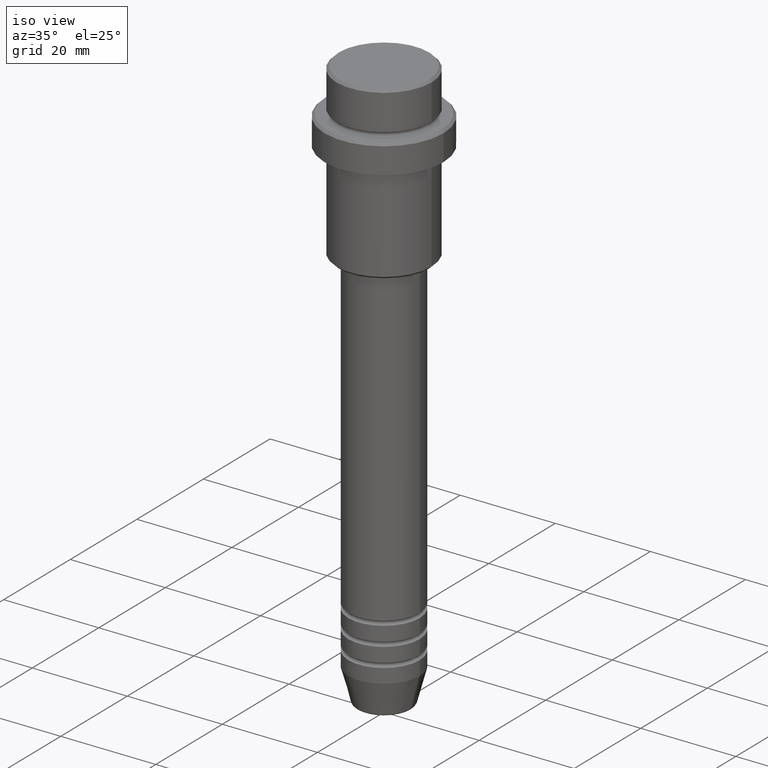
[diagram: clean part render]
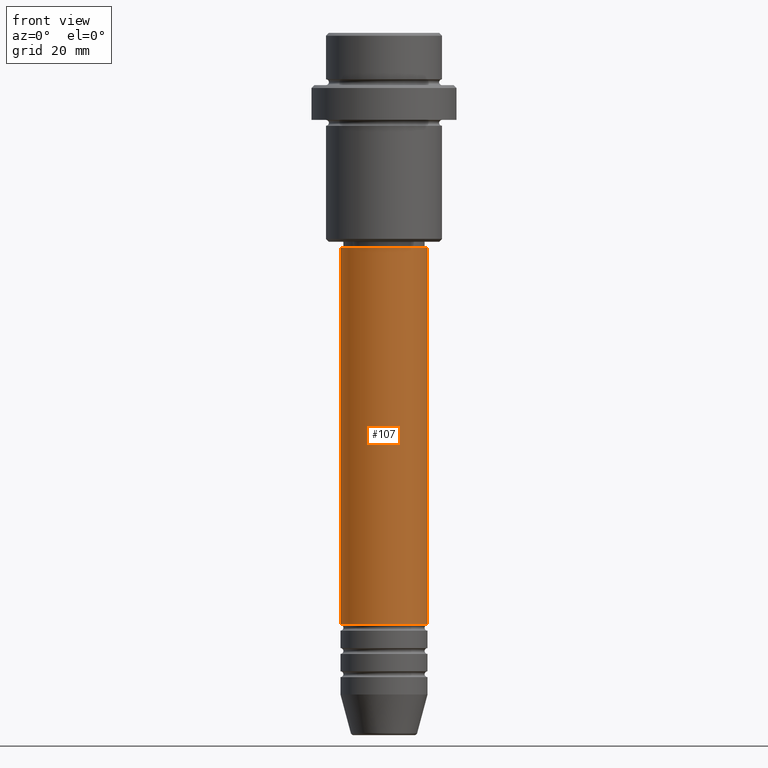
[diagram: tour spotlight — one face highlighted and labeled with its STEP entity id]
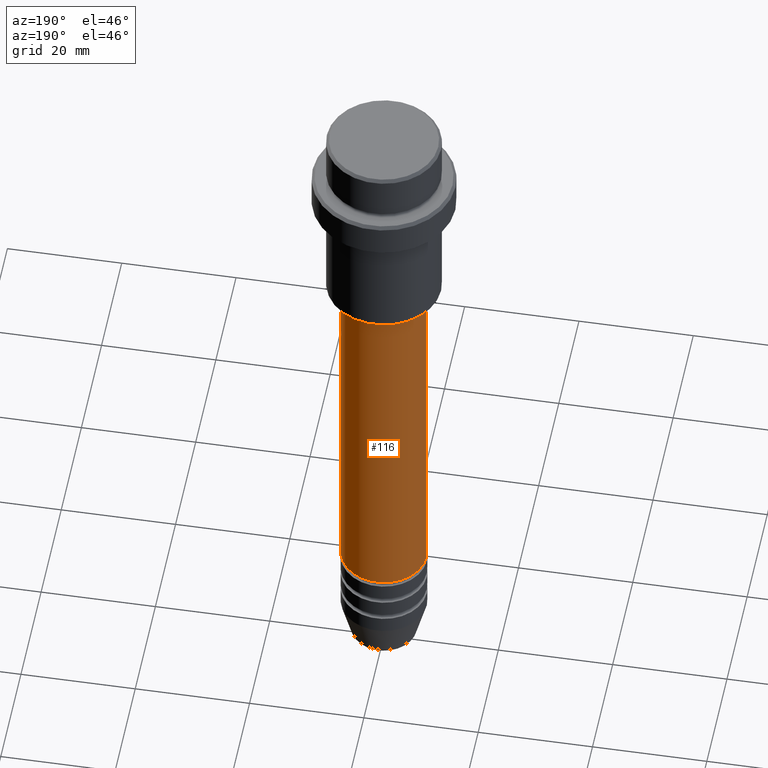
[diagram: tour spotlight — one face highlighted and labeled with its STEP entity id]
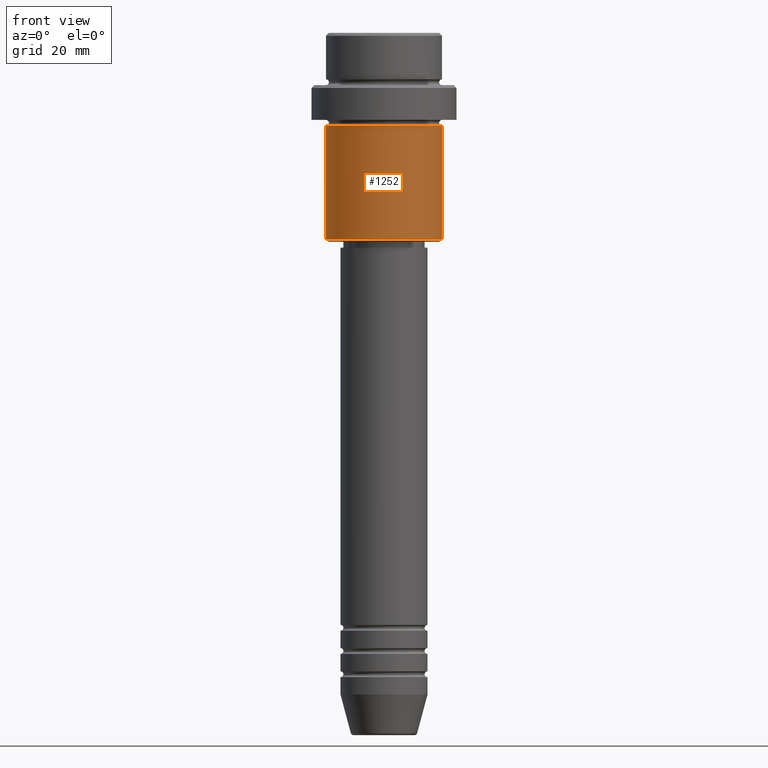
[diagram: tour spotlight — one face highlighted and labeled with its STEP entity id]
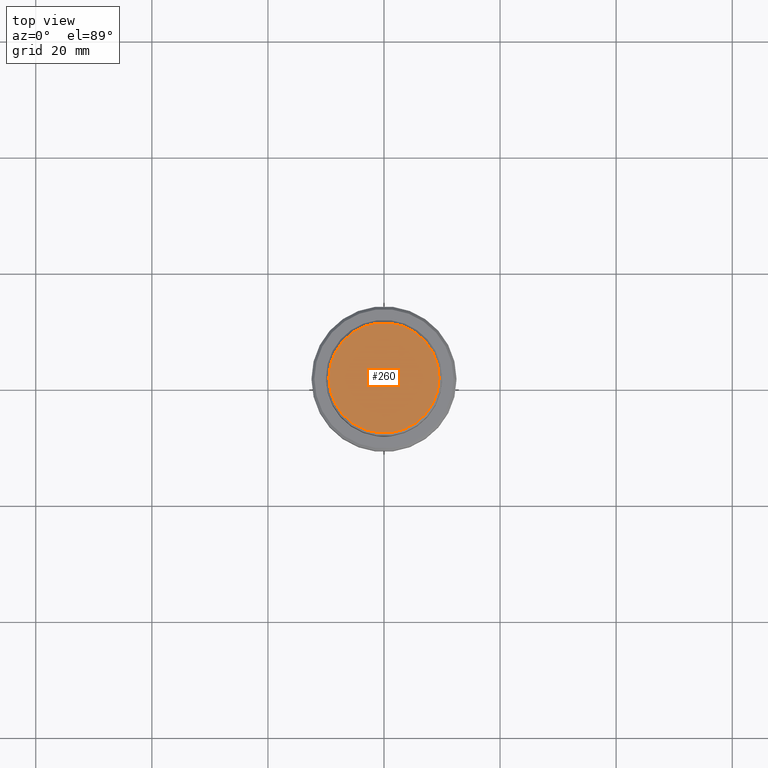
[diagram: tour spotlight — one face highlighted and labeled with its STEP entity id]
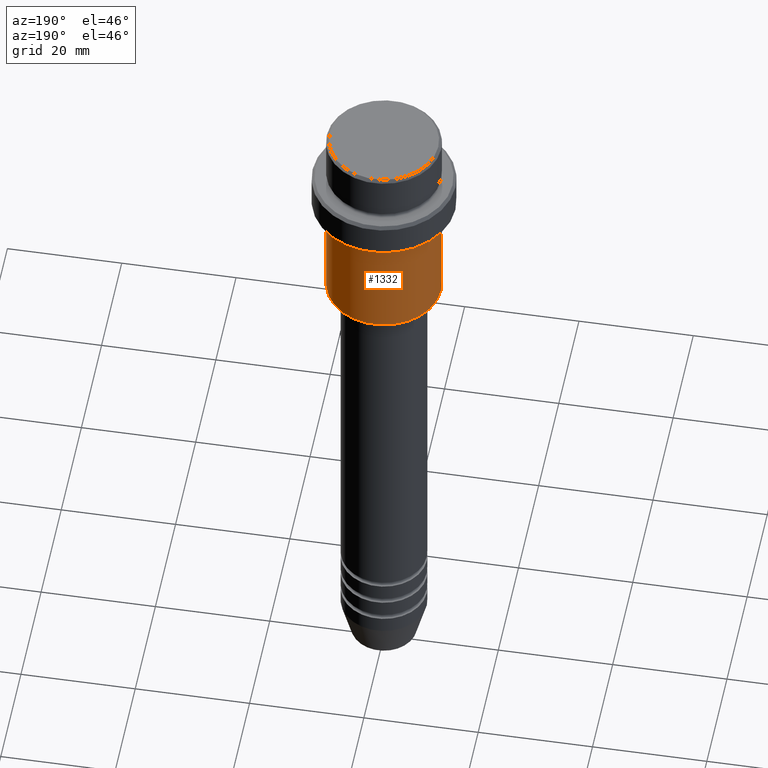
[diagram: tour spotlight — one face highlighted and labeled with its STEP entity id]
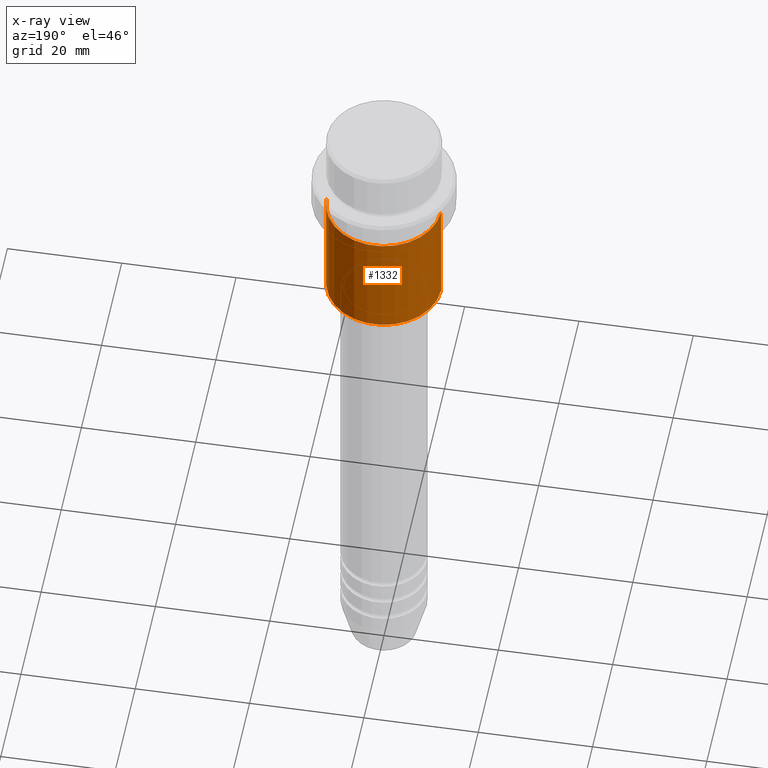
[diagram: x-ray of the same camera — body ghosted, this tour face saturated]
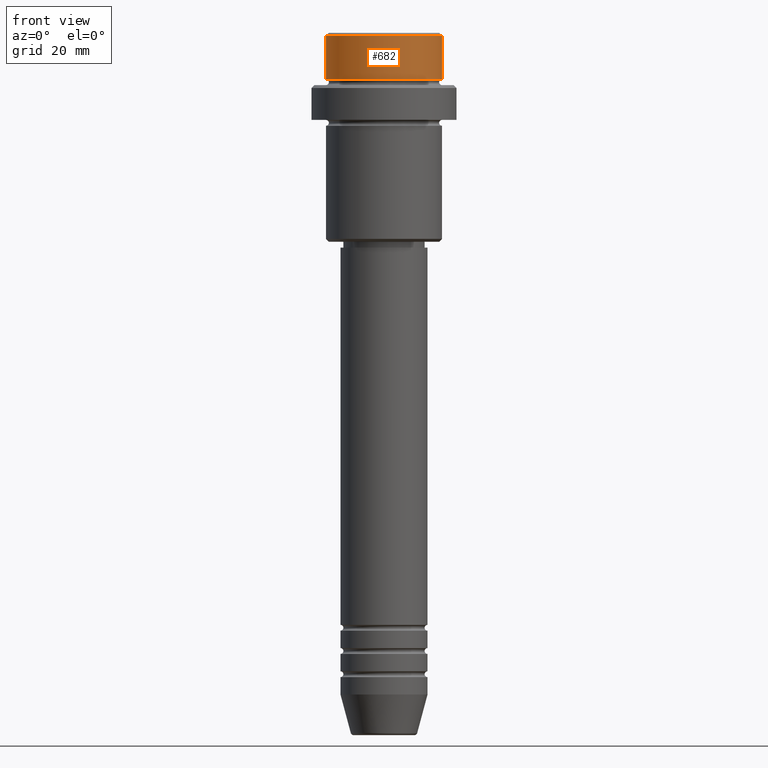
[diagram: tour spotlight — one face highlighted and labeled with its STEP entity id]
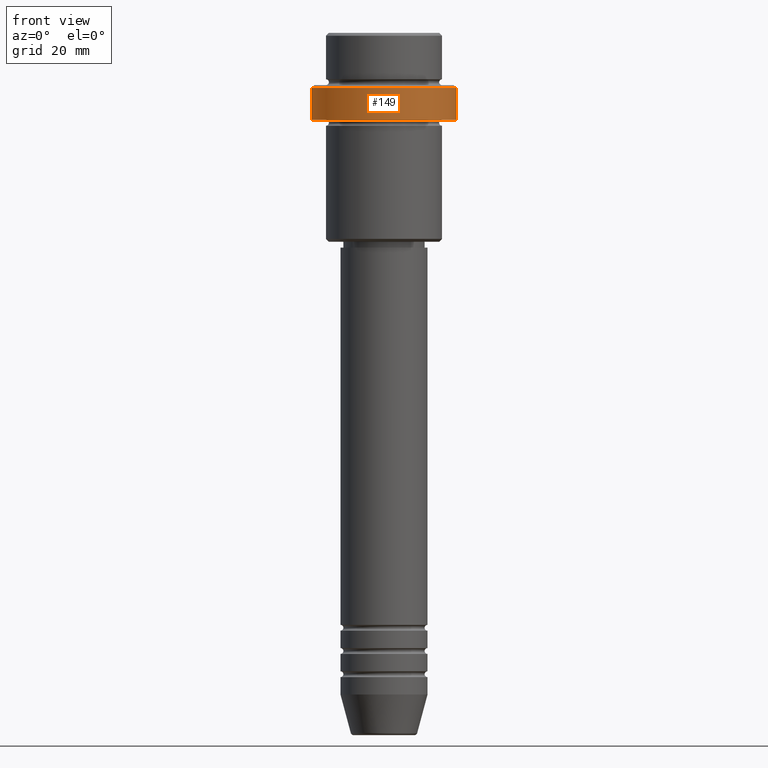
[diagram: tour spotlight — one face highlighted and labeled with its STEP entity id]
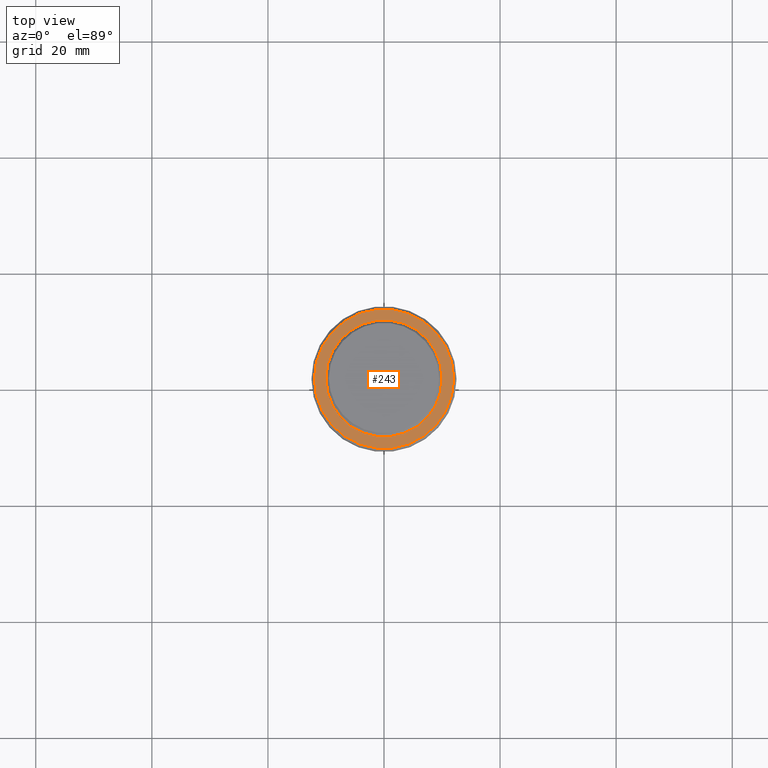
[diagram: tour spotlight — one face highlighted and labeled with its STEP entity id]
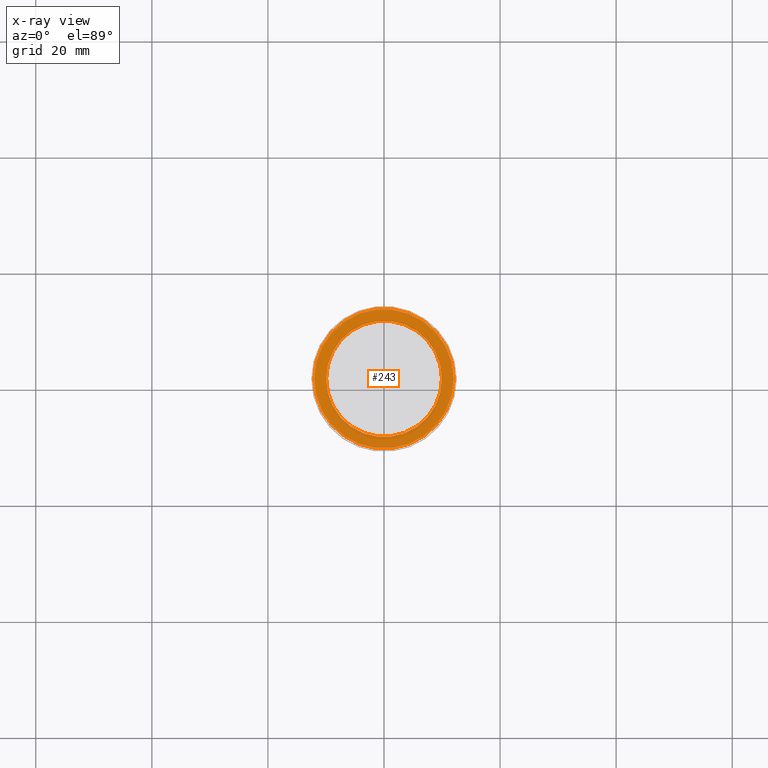
[diagram: x-ray of the same camera — body ghosted, this tour face saturated]
A machine part: a face-by-face anatomy tour. The part has 52 B-rep faces; the first image is the clean iso view, then the 8 largest visible faces are spotlighted one at a time (largest first), each with its STEP entity span.

Face 1 — front view, entity #107. In plain terms, the highlighted cylindrical surface (partial cylindrical patch) has radius 7.5 mm, axis along (-0, -0, 1).
Definition (entity closure, byte-faithful):
#22 = ORIENTED_EDGE ( 'NONE', *, *, #1031, .F. ) ;
#46 = VECTOR ( 'NONE', #1155, 1000.000000000000000 ) ;
#69 = CIRCLE ( 'NONE', #1401, 7.500000000000000000 ) ;
#78 = CARTESIAN_POINT ( 'NONE',  ( -7.500000000000000000, 9.184850993605147944E-16, -37.00000000000002132 ) ) ;
#86 = CARTESIAN_POINT ( 'NONE',  ( 0.000000000000000000, 0.000000000000000000, 0.000000000000000000 ) ) ;
#107 = ADVANCED_FACE ( 'NONE', ( #742 ), #301, .T. ) ;
#132 = CARTESIAN_POINT ( 'NONE',  ( 7.500000000000000000, 0.000000000000000000, 0.000000000000000000 ) ) ;
#142 = CARTESIAN_POINT ( 'NONE',  ( 0.000000000000000000, 0.000000000000000000, -101.9999999999999005 ) ) ;
#264 = ORIENTED_EDGE ( 'NONE', *, *, #306, .T. ) ;
#301 = CYLINDRICAL_SURFACE ( 'NONE', #750, 7.500000000000000000 ) ;
#306 = EDGE_CURVE ( 'NONE', #984, #788, #1029, .T. ) ;
#356 = DIRECTION ( 'NONE',  ( -0.000000000000000000, -0.000000000000000000, 1.000000000000000000 ) ) ;
#380 = CARTESIAN_POINT ( 'NONE',  ( 7.500000000000000000, 0.000000000000000000, -37.00000000000002132 ) ) ;
#418 = DIRECTION ( 'NONE',  ( -0.000000000000000000, -0.000000000000000000, 1.000000000000000000 ) ) ;
#557 = CARTESIAN_POINT ( 'NONE',  ( 7.500000000000000000, 0.000000000000000000, -101.9999999999999005 ) ) ;
#562 = VERTEX_POINT ( 'NONE', #78 ) ;
#592 = VECTOR ( 'NONE', #356, 1000.000000000000000 ) ;
#598 = ORIENTED_EDGE ( 'NONE', *, *, #1184, .T. ) ;
#671 = LINE ( 'NONE', #132, #592 ) ;
#714 = CARTESIAN_POINT ( 'NONE',  ( -7.500000000000000000, 9.184850993605147944E-16, 0.000000000000000000 ) ) ;
#729 = DIRECTION ( 'NONE',  ( -0.000000000000000000, -0.000000000000000000, 1.000000000000000000 ) ) ;
#742 = FACE_OUTER_BOUND ( 'NONE', #834, .T. ) ;
#750 = AXIS2_PLACEMENT_3D ( 'NONE', #86, #418, #856 ) ;
#788 = VERTEX_POINT ( 'NONE', #557 ) ;
#817 = LINE ( 'NONE', #714, #46 ) ;
#834 = EDGE_LOOP ( 'NONE', ( #22, #264, #598, #1146 ) ) ;
#856 = DIRECTION ( 'NONE',  ( 1.000000000000000000, 0.000000000000000000, 0.000000000000000000 ) ) ;
#984 = VERTEX_POINT ( 'NONE', #1044 ) ;
#1014 = VERTEX_POINT ( 'NONE', #380 ) ;
#1029 = CIRCLE ( 'NONE', #1320, 7.500000000000000000 ) ;
#1031 = EDGE_CURVE ( 'NONE', #984, #562, #817, .T. ) ;
#1044 = CARTESIAN_POINT ( 'NONE',  ( -7.500000000000000000, 9.184850993605147944E-16, -101.9999999999999005 ) ) ;
#1137 = DIRECTION ( 'NONE',  ( -0.000000000000000000, -0.000000000000000000, 1.000000000000000000 ) ) ;
#1146 = ORIENTED_EDGE ( 'NONE', *, *, #1263, .F. ) ;
#1155 = DIRECTION ( 'NONE',  ( -0.000000000000000000, -0.000000000000000000, 1.000000000000000000 ) ) ;
#1183 = CARTESIAN_POINT ( 'NONE',  ( 0.000000000000000000, 0.000000000000000000, -37.00000000000002132 ) ) ;
#1184 = EDGE_CURVE ( 'NONE', #788, #1014, #671, .T. ) ;
#1263 = EDGE_CURVE ( 'NONE', #562, #1014, #69, .T. ) ;
#1320 = AXIS2_PLACEMENT_3D ( 'NONE', #142, #1137, #1366 ) ;
#1366 = DIRECTION ( 'NONE',  ( 1.000000000000000000, 0.000000000000000000, 0.000000000000000000 ) ) ;
#1379 = DIRECTION ( 'NONE',  ( 1.000000000000000000, 0.000000000000000000, 0.000000000000000000 ) ) ;
#1401 = AXIS2_PLACEMENT_3D ( 'NONE', #1183, #729, #1379 ) ;

Face 2 — auxiliary view, entity #116. In plain terms, the highlighted cylindrical surface (partial cylindrical patch) has radius 7.5 mm, axis along (-0, -0, 1).
Definition (entity closure, byte-faithful):
#46 = VECTOR ( 'NONE', #1155, 1000.000000000000000 ) ;
#78 = CARTESIAN_POINT ( 'NONE',  ( -7.500000000000000000, 9.184850993605147944E-16, -37.00000000000002132 ) ) ;
#116 = ADVANCED_FACE ( 'NONE', ( #307 ), #1182, .T. ) ;
#132 = CARTESIAN_POINT ( 'NONE',  ( 7.500000000000000000, 0.000000000000000000, 0.000000000000000000 ) ) ;
#307 = FACE_OUTER_BOUND ( 'NONE', #1262, .T. ) ;
#326 = DIRECTION ( 'NONE',  ( -0.000000000000000000, -0.000000000000000000, 1.000000000000000000 ) ) ;
#339 = CIRCLE ( 'NONE', #844, 7.500000000000000000 ) ;
#356 = DIRECTION ( 'NONE',  ( -0.000000000000000000, -0.000000000000000000, 1.000000000000000000 ) ) ;
#372 = ORIENTED_EDGE ( 'NONE', *, *, #1184, .F. ) ;
#380 = CARTESIAN_POINT ( 'NONE',  ( 7.500000000000000000, 0.000000000000000000, -37.00000000000002132 ) ) ;
#441 = ORIENTED_EDGE ( 'NONE', *, *, #574, .F. ) ;
#506 = CARTESIAN_POINT ( 'NONE',  ( 0.000000000000000000, 0.000000000000000000, -37.00000000000002132 ) ) ;
#557 = CARTESIAN_POINT ( 'NONE',  ( 7.500000000000000000, 0.000000000000000000, -101.9999999999999005 ) ) ;
#562 = VERTEX_POINT ( 'NONE', #78 ) ;
#574 = EDGE_CURVE ( 'NONE', #1014, #562, #339, .T. ) ;
#592 = VECTOR ( 'NONE', #356, 1000.000000000000000 ) ;
#668 = CARTESIAN_POINT ( 'NONE',  ( 0.000000000000000000, 0.000000000000000000, -101.9999999999999005 ) ) ;
#671 = LINE ( 'NONE', #132, #592 ) ;
#695 = ORIENTED_EDGE ( 'NONE', *, *, #924, .T. ) ;
#704 = CIRCLE ( 'NONE', #1236, 7.500000000000000000 ) ;
#714 = CARTESIAN_POINT ( 'NONE',  ( -7.500000000000000000, 9.184850993605147944E-16, 0.000000000000000000 ) ) ;
#788 = VERTEX_POINT ( 'NONE', #557 ) ;
#791 = ORIENTED_EDGE ( 'NONE', *, *, #1031, .T. ) ;
#817 = LINE ( 'NONE', #714, #46 ) ;
#836 = DIRECTION ( 'NONE',  ( 1.000000000000000000, 0.000000000000000000, 0.000000000000000000 ) ) ;
#844 = AXIS2_PLACEMENT_3D ( 'NONE', #506, #1384, #836 ) ;
#863 = DIRECTION ( 'NONE',  ( 1.000000000000000000, 0.000000000000000000, 0.000000000000000000 ) ) ;
#898 = DIRECTION ( 'NONE',  ( 1.000000000000000000, 0.000000000000000000, 0.000000000000000000 ) ) ;
#924 = EDGE_CURVE ( 'NONE', #788, #984, #704, .T. ) ;
#974 = CARTESIAN_POINT ( 'NONE',  ( 0.000000000000000000, 0.000000000000000000, 0.000000000000000000 ) ) ;
#984 = VERTEX_POINT ( 'NONE', #1044 ) ;
#1014 = VERTEX_POINT ( 'NONE', #380 ) ;
#1031 = EDGE_CURVE ( 'NONE', #984, #562, #817, .T. ) ;
#1044 = CARTESIAN_POINT ( 'NONE',  ( -7.500000000000000000, 9.184850993605147944E-16, -101.9999999999999005 ) ) ;
#1155 = DIRECTION ( 'NONE',  ( -0.000000000000000000, -0.000000000000000000, 1.000000000000000000 ) ) ;
#1182 = CYLINDRICAL_SURFACE ( 'NONE', #1302, 7.500000000000000000 ) ;
#1184 = EDGE_CURVE ( 'NONE', #788, #1014, #671, .T. ) ;
#1236 = AXIS2_PLACEMENT_3D ( 'NONE', #668, #326, #898 ) ;
#1262 = EDGE_LOOP ( 'NONE', ( #695, #791, #441, #372 ) ) ;
#1302 = AXIS2_PLACEMENT_3D ( 'NONE', #974, #1411, #863 ) ;
#1384 = DIRECTION ( 'NONE',  ( -0.000000000000000000, -0.000000000000000000, 1.000000000000000000 ) ) ;
#1411 = DIRECTION ( 'NONE',  ( -0.000000000000000000, -0.000000000000000000, 1.000000000000000000 ) ) ;

Face 3 — front view, entity #1252. In plain terms, the highlighted cylindrical surface (partial cylindrical patch) has radius 10 mm, axis along (-0, -0, 1).
Definition (entity closure, byte-faithful):
#50 = ORIENTED_EDGE ( 'NONE', *, *, #319, .T. ) ;
#66 = CARTESIAN_POINT ( 'NONE',  ( 0.000000000000000000, 0.000000000000000000, 0.000000000000000000 ) ) ;
#124 = ORIENTED_EDGE ( 'NONE', *, *, #972, .T. ) ;
#129 = EDGE_CURVE ( 'NONE', #515, #1218, #1089, .T. ) ;
#207 = VERTEX_POINT ( 'NONE', #457 ) ;
#234 = EDGE_LOOP ( 'NONE', ( #1301, #50, #124, #528 ) ) ;
#240 = CARTESIAN_POINT ( 'NONE',  ( 0.000000000000000000, 0.000000000000000000, -16.00000000000000000 ) ) ;
#249 = DIRECTION ( 'NONE',  ( -1.000000000000000000, 0.000000000000000000, 0.000000000000000000 ) ) ;
#270 = VECTOR ( 'NONE', #1132, 1000.000000000000000 ) ;
#284 = CARTESIAN_POINT ( 'NONE',  ( -9.999999999999998224, 1.224646799147353059E-15, -16.00000000000000000 ) ) ;
#319 = EDGE_CURVE ( 'NONE', #515, #207, #889, .T. ) ;
#457 = CARTESIAN_POINT ( 'NONE',  ( 9.999999999999998224, 0.000000000000000000, -35.49999999999999289 ) ) ;
#463 = CARTESIAN_POINT ( 'NONE',  ( 9.999999999999998224, 0.000000000000000000, -16.00000000000000000 ) ) ;
#515 = VERTEX_POINT ( 'NONE', #740 ) ;
#522 = DIRECTION ( 'NONE',  ( -0.000000000000000000, -0.000000000000000000, 1.000000000000000000 ) ) ;
#528 = ORIENTED_EDGE ( 'NONE', *, *, #1194, .F. ) ;
#567 = AXIS2_PLACEMENT_3D ( 'NONE', #816, #580, #249 ) ;
#573 = DIRECTION ( 'NONE',  ( 1.000000000000000000, 0.000000000000000000, 0.000000000000000000 ) ) ;
#580 = DIRECTION ( 'NONE',  ( -0.000000000000000000, -0.000000000000000000, 1.000000000000000000 ) ) ;
#588 = VECTOR ( 'NONE', #752, 1000.000000000000000 ) ;
#607 = FACE_OUTER_BOUND ( 'NONE', #234, .T. ) ;
#740 = CARTESIAN_POINT ( 'NONE',  ( -9.999999999999998224, 1.224646799147353059E-15, -35.49999999999999289 ) ) ;
#752 = DIRECTION ( 'NONE',  ( -0.000000000000000000, -0.000000000000000000, 1.000000000000000000 ) ) ;
#816 = CARTESIAN_POINT ( 'NONE',  ( 0.000000000000000000, 0.000000000000000000, -35.49999999999999289 ) ) ;
#889 = CIRCLE ( 'NONE', #567, 9.999999999999998224 ) ;
#972 = EDGE_CURVE ( 'NONE', #207, #1025, #1260, .T. ) ;
#1025 = VERTEX_POINT ( 'NONE', #463 ) ;
#1028 = CARTESIAN_POINT ( 'NONE',  ( 9.999999999999998224, 0.000000000000000000, 0.000000000000000000 ) ) ;
#1035 = CIRCLE ( 'NONE', #1307, 9.999999999999998224 ) ;
#1089 = LINE ( 'NONE', #1297, #588 ) ;
#1132 = DIRECTION ( 'NONE',  ( -0.000000000000000000, -0.000000000000000000, 1.000000000000000000 ) ) ;
#1157 = DIRECTION ( 'NONE',  ( 1.000000000000000000, 0.000000000000000000, 0.000000000000000000 ) ) ;
#1194 = EDGE_CURVE ( 'NONE', #1218, #1025, #1035, .T. ) ;
#1218 = VERTEX_POINT ( 'NONE', #284 ) ;
#1224 = DIRECTION ( 'NONE',  ( -0.000000000000000000, -0.000000000000000000, 1.000000000000000000 ) ) ;
#1237 = AXIS2_PLACEMENT_3D ( 'NONE', #66, #522, #1157 ) ;
#1252 = ADVANCED_FACE ( 'NONE', ( #607 ), #1394, .T. ) ;
#1260 = LINE ( 'NONE', #1028, #270 ) ;
#1297 = CARTESIAN_POINT ( 'NONE',  ( -9.999999999999998224, 1.224646799147353059E-15, 0.000000000000000000 ) ) ;
#1301 = ORIENTED_EDGE ( 'NONE', *, *, #129, .F. ) ;
#1307 = AXIS2_PLACEMENT_3D ( 'NONE', #240, #1224, #573 ) ;
#1394 = CYLINDRICAL_SURFACE ( 'NONE', #1237, 9.999999999999998224 ) ;

Face 4 — top view, entity #260. In plain terms, the highlighted planar face has unit normal (0, -0, 1).
Definition (entity closure, byte-faithful):
#25 = DIRECTION ( 'NONE',  ( 1.000000000000000000, 0.000000000000000000, 0.000000000000000000 ) ) ;
#198 = CARTESIAN_POINT ( 'NONE',  ( 9.500000000000008882, 1.194030629168669864E-15, 0.000000000000000000 ) ) ;
#241 = DIRECTION ( 'NONE',  ( 0.000000000000000000, -0.000000000000000000, 1.000000000000000000 ) ) ;
#242 = ORIENTED_EDGE ( 'NONE', *, *, #389, .T. ) ;
#258 = EDGE_LOOP ( 'NONE', ( #242, #1267 ) ) ;
#260 = ADVANCED_FACE ( 'NONE', ( #789 ), #1005, .T. ) ;
#347 = DIRECTION ( 'NONE',  ( 1.000000000000000000, 0.000000000000000000, 0.000000000000000000 ) ) ;
#389 = EDGE_CURVE ( 'NONE', #657, #1321, #988, .T. ) ;
#391 = CIRCLE ( 'NONE', #705, 9.500000000000008882 ) ;
#547 = AXIS2_PLACEMENT_3D ( 'NONE', #706, #1027, #804 ) ;
#657 = VERTEX_POINT ( 'NONE', #1290 ) ;
#705 = AXIS2_PLACEMENT_3D ( 'NONE', #1111, #1326, #347 ) ;
#706 = CARTESIAN_POINT ( 'NONE',  ( 0.000000000000000000, 0.000000000000000000, 0.000000000000000000 ) ) ;
#789 = FACE_OUTER_BOUND ( 'NONE', #258, .T. ) ;
#804 = DIRECTION ( 'NONE',  ( 1.000000000000000000, 0.000000000000000000, 0.000000000000000000 ) ) ;
#913 = AXIS2_PLACEMENT_3D ( 'NONE', #1314, #241, #25 ) ;
#988 = CIRCLE ( 'NONE', #547, 9.500000000000008882 ) ;
#1005 = PLANE ( 'NONE',  #913 ) ;
#1027 = DIRECTION ( 'NONE',  ( -0.000000000000000000, -0.000000000000000000, 1.000000000000000000 ) ) ;
#1111 = CARTESIAN_POINT ( 'NONE',  ( 0.000000000000000000, 0.000000000000000000, 0.000000000000000000 ) ) ;
#1267 = ORIENTED_EDGE ( 'NONE', *, *, #1341, .T. ) ;
#1290 = CARTESIAN_POINT ( 'NONE',  ( -9.500000000000008882, 0.000000000000000000, 0.000000000000000000 ) ) ;
#1314 = CARTESIAN_POINT ( 'NONE',  ( 0.000000000000000000, 0.000000000000000000, 0.000000000000000000 ) ) ;
#1321 = VERTEX_POINT ( 'NONE', #198 ) ;
#1326 = DIRECTION ( 'NONE',  ( -0.000000000000000000, -0.000000000000000000, 1.000000000000000000 ) ) ;
#1341 = EDGE_CURVE ( 'NONE', #1321, #657, #391, .T. ) ;

Face 5 — auxiliary view, entity #1332. An x-ray twin of the same camera follows (body ghosted, this face saturated) — the face is partly hidden behind the body. In plain terms, the highlighted cylindrical surface (partial cylindrical patch) has radius 10 mm, axis along (-0, -0, 1).
Definition (entity closure, byte-faithful):
#94 = AXIS2_PLACEMENT_3D ( 'NONE', #233, #667, #753 ) ;
#129 = EDGE_CURVE ( 'NONE', #515, #1218, #1089, .T. ) ;
#178 = AXIS2_PLACEMENT_3D ( 'NONE', #675, #1335, #447 ) ;
#207 = VERTEX_POINT ( 'NONE', #457 ) ;
#233 = CARTESIAN_POINT ( 'NONE',  ( 0.000000000000000000, 0.000000000000000000, 0.000000000000000000 ) ) ;
#270 = VECTOR ( 'NONE', #1132, 1000.000000000000000 ) ;
#275 = CARTESIAN_POINT ( 'NONE',  ( 0.000000000000000000, 0.000000000000000000, -16.00000000000000000 ) ) ;
#284 = CARTESIAN_POINT ( 'NONE',  ( -9.999999999999998224, 1.224646799147353059E-15, -16.00000000000000000 ) ) ;
#408 = AXIS2_PLACEMENT_3D ( 'NONE', #275, #811, #1250 ) ;
#443 = EDGE_CURVE ( 'NONE', #1025, #1218, #548, .T. ) ;
#447 = DIRECTION ( 'NONE',  ( -1.000000000000000000, 0.000000000000000000, 0.000000000000000000 ) ) ;
#457 = CARTESIAN_POINT ( 'NONE',  ( 9.999999999999998224, 0.000000000000000000, -35.49999999999999289 ) ) ;
#463 = CARTESIAN_POINT ( 'NONE',  ( 9.999999999999998224, 0.000000000000000000, -16.00000000000000000 ) ) ;
#488 = ORIENTED_EDGE ( 'NONE', *, *, #443, .F. ) ;
#505 = EDGE_LOOP ( 'NONE', ( #1375, #900, #488, #1336 ) ) ;
#515 = VERTEX_POINT ( 'NONE', #740 ) ;
#532 = FACE_OUTER_BOUND ( 'NONE', #505, .T. ) ;
#548 = CIRCLE ( 'NONE', #408, 9.999999999999998224 ) ;
#588 = VECTOR ( 'NONE', #752, 1000.000000000000000 ) ;
#667 = DIRECTION ( 'NONE',  ( -0.000000000000000000, -0.000000000000000000, 1.000000000000000000 ) ) ;
#675 = CARTESIAN_POINT ( 'NONE',  ( 0.000000000000000000, 0.000000000000000000, -35.49999999999999289 ) ) ;
#740 = CARTESIAN_POINT ( 'NONE',  ( -9.999999999999998224, 1.224646799147353059E-15, -35.49999999999999289 ) ) ;
#752 = DIRECTION ( 'NONE',  ( -0.000000000000000000, -0.000000000000000000, 1.000000000000000000 ) ) ;
#753 = DIRECTION ( 'NONE',  ( 1.000000000000000000, 0.000000000000000000, 0.000000000000000000 ) ) ;
#772 = EDGE_CURVE ( 'NONE', #207, #515, #941, .T. ) ;
#776 = CYLINDRICAL_SURFACE ( 'NONE', #94, 9.999999999999998224 ) ;
#811 = DIRECTION ( 'NONE',  ( -0.000000000000000000, -0.000000000000000000, 1.000000000000000000 ) ) ;
#900 = ORIENTED_EDGE ( 'NONE', *, *, #129, .T. ) ;
#941 = CIRCLE ( 'NONE', #178, 9.999999999999998224 ) ;
#972 = EDGE_CURVE ( 'NONE', #207, #1025, #1260, .T. ) ;
#1025 = VERTEX_POINT ( 'NONE', #463 ) ;
#1028 = CARTESIAN_POINT ( 'NONE',  ( 9.999999999999998224, 0.000000000000000000, 0.000000000000000000 ) ) ;
#1089 = LINE ( 'NONE', #1297, #588 ) ;
#1132 = DIRECTION ( 'NONE',  ( -0.000000000000000000, -0.000000000000000000, 1.000000000000000000 ) ) ;
#1218 = VERTEX_POINT ( 'NONE', #284 ) ;
#1250 = DIRECTION ( 'NONE',  ( 1.000000000000000000, 0.000000000000000000, 0.000000000000000000 ) ) ;
#1260 = LINE ( 'NONE', #1028, #270 ) ;
#1297 = CARTESIAN_POINT ( 'NONE',  ( -9.999999999999998224, 1.224646799147353059E-15, 0.000000000000000000 ) ) ;
#1332 = ADVANCED_FACE ( 'NONE', ( #532 ), #776, .T. ) ;
#1335 = DIRECTION ( 'NONE',  ( -0.000000000000000000, -0.000000000000000000, 1.000000000000000000 ) ) ;
#1336 = ORIENTED_EDGE ( 'NONE', *, *, #972, .F. ) ;
#1375 = ORIENTED_EDGE ( 'NONE', *, *, #772, .T. ) ;

Face 6 — front view, entity #682. In plain terms, the highlighted cylindrical surface (partial cylindrical patch) has radius 10 mm, axis along (-0, -0, 1).
Definition (entity closure, byte-faithful):
#74 = EDGE_CURVE ( 'NONE', #1156, #1062, #1287, .T. ) ;
#91 = EDGE_CURVE ( 'NONE', #929, #359, #619, .T. ) ;
#153 = DIRECTION ( 'NONE',  ( 0.000000000000000000, 0.000000000000000000, -1.000000000000000000 ) ) ;
#219 = DIRECTION ( 'NONE',  ( -0.000000000000000000, -0.000000000000000000, 1.000000000000000000 ) ) ;
#314 = DIRECTION ( 'NONE',  ( -0.000000000000000000, -0.000000000000000000, 1.000000000000000000 ) ) ;
#328 = ORIENTED_EDGE ( 'NONE', *, *, #434, .T. ) ;
#342 = ORIENTED_EDGE ( 'NONE', *, *, #1221, .T. ) ;
#359 = VERTEX_POINT ( 'NONE', #830 ) ;
#373 = DIRECTION ( 'NONE',  ( 1.000000000000000000, 0.000000000000000000, 0.000000000000000000 ) ) ;
#412 = AXIS2_PLACEMENT_3D ( 'NONE', #419, #620, #427 ) ;
#419 = CARTESIAN_POINT ( 'NONE',  ( 0.000000000000000000, 0.000000000000000000, -7.999999999999998224 ) ) ;
#427 = DIRECTION ( 'NONE',  ( 1.000000000000000000, 0.000000000000000000, 0.000000000000000000 ) ) ;
#434 = EDGE_CURVE ( 'NONE', #1062, #359, #1372, .T. ) ;
#535 = DIRECTION ( 'NONE',  ( -0.000000000000000000, -0.000000000000000000, 1.000000000000000000 ) ) ;
#604 = CARTESIAN_POINT ( 'NONE',  ( 0.000000000000000000, 0.000000000000000000, -0.4999999999999970024 ) ) ;
#619 = LINE ( 'NONE', #1404, #1344 ) ;
#620 = DIRECTION ( 'NONE',  ( -0.000000000000000000, -0.000000000000000000, 1.000000000000000000 ) ) ;
#644 = DIRECTION ( 'NONE',  ( 1.000000000000000000, 0.000000000000000000, 0.000000000000000000 ) ) ;
#656 = CARTESIAN_POINT ( 'NONE',  ( 0.000000000000000000, 0.000000000000000000, 0.000000000000000000 ) ) ;
#658 = CARTESIAN_POINT ( 'NONE',  ( 9.999999999999998224, 0.000000000000000000, -7.999999999999998224 ) ) ;
#682 = ADVANCED_FACE ( 'NONE', ( #866 ), #843, .T. ) ;
#830 = CARTESIAN_POINT ( 'NONE',  ( -9.999999999999998224, 1.224646799147353059E-15, -0.4999999999999970024 ) ) ;
#837 = CARTESIAN_POINT ( 'NONE',  ( 9.999999999999998224, 0.000000000000000000, -0.4999999999999970024 ) ) ;
#843 = CYLINDRICAL_SURFACE ( 'NONE', #1323, 9.999999999999998224 ) ;
#866 = FACE_OUTER_BOUND ( 'NONE', #1178, .T. ) ;
#929 = VERTEX_POINT ( 'NONE', #997 ) ;
#937 = VECTOR ( 'NONE', #314, 1000.000000000000000 ) ;
#997 = CARTESIAN_POINT ( 'NONE',  ( -9.999999999999998224, 1.224646799147353059E-15, -7.999999999999998224 ) ) ;
#1000 = ORIENTED_EDGE ( 'NONE', *, *, #74, .T. ) ;
#1062 = VERTEX_POINT ( 'NONE', #837 ) ;
#1106 = CIRCLE ( 'NONE', #412, 9.999999999999998224 ) ;
#1156 = VERTEX_POINT ( 'NONE', #658 ) ;
#1178 = EDGE_LOOP ( 'NONE', ( #1313, #342, #1000, #328 ) ) ;
#1221 = EDGE_CURVE ( 'NONE', #929, #1156, #1106, .T. ) ;
#1274 = CARTESIAN_POINT ( 'NONE',  ( 9.999999999999998224, 0.000000000000000000, 0.000000000000000000 ) ) ;
#1287 = LINE ( 'NONE', #1274, #937 ) ;
#1313 = ORIENTED_EDGE ( 'NONE', *, *, #91, .F. ) ;
#1323 = AXIS2_PLACEMENT_3D ( 'NONE', #656, #535, #644 ) ;
#1344 = VECTOR ( 'NONE', #219, 1000.000000000000000 ) ;
#1347 = AXIS2_PLACEMENT_3D ( 'NONE', #604, #153, #373 ) ;
#1372 = CIRCLE ( 'NONE', #1347, 9.999999999999998224 ) ;
#1404 = CARTESIAN_POINT ( 'NONE',  ( -9.999999999999998224, 1.224646799147353059E-15, 0.000000000000000000 ) ) ;

Face 7 — front view, entity #149. In plain terms, the highlighted cylindrical surface (partial cylindrical patch) has radius 12.5 mm, axis along (-0, -0, 1).
Definition (entity closure, byte-faithful):
#7 = AXIS2_PLACEMENT_3D ( 'NONE', #1108, #781, #452 ) ;
#99 = CARTESIAN_POINT ( 'NONE',  ( 12.50000000000000000, 0.000000000000000000, -15.00000000000000000 ) ) ;
#135 = DIRECTION ( 'NONE',  ( -0.000000000000000000, -0.000000000000000000, 1.000000000000000000 ) ) ;
#137 = ORIENTED_EDGE ( 'NONE', *, *, #1315, .T. ) ;
#149 = ADVANCED_FACE ( 'NONE', ( #769 ), #786, .T. ) ;
#278 = LINE ( 'NONE', #818, #757 ) ;
#286 = EDGE_CURVE ( 'NONE', #652, #1415, #660, .T. ) ;
#291 = VECTOR ( 'NONE', #135, 1000.000000000000000 ) ;
#294 = DIRECTION ( 'NONE',  ( 0.000000000000000000, 0.000000000000000000, -1.000000000000000000 ) ) ;
#302 = CARTESIAN_POINT ( 'NONE',  ( 0.000000000000000000, 0.000000000000000000, -9.499999999999991118 ) ) ;
#452 = DIRECTION ( 'NONE',  ( 1.000000000000000000, 0.000000000000000000, 0.000000000000000000 ) ) ;
#460 = VERTEX_POINT ( 'NONE', #530 ) ;
#478 = DIRECTION ( 'NONE',  ( -0.000000000000000000, -0.000000000000000000, 1.000000000000000000 ) ) ;
#516 = CARTESIAN_POINT ( 'NONE',  ( -12.50000000000000000, 1.530808498934191521E-15, -9.499999999999991118 ) ) ;
#519 = AXIS2_PLACEMENT_3D ( 'NONE', #990, #1226, #654 ) ;
#530 = CARTESIAN_POINT ( 'NONE',  ( -12.50000000000000000, 1.530808498934191521E-15, -15.00000000000000000 ) ) ;
#586 = ORIENTED_EDGE ( 'NONE', *, *, #286, .T. ) ;
#616 = VERTEX_POINT ( 'NONE', #516 ) ;
#628 = DIRECTION ( 'NONE',  ( 1.000000000000000000, 0.000000000000000000, 0.000000000000000000 ) ) ;
#652 = VERTEX_POINT ( 'NONE', #99 ) ;
#654 = DIRECTION ( 'NONE',  ( 1.000000000000000000, 0.000000000000000000, 0.000000000000000000 ) ) ;
#660 = LINE ( 'NONE', #1123, #291 ) ;
#738 = ORIENTED_EDGE ( 'NONE', *, *, #1409, .F. ) ;
#745 = EDGE_CURVE ( 'NONE', #460, #652, #1233, .T. ) ;
#757 = VECTOR ( 'NONE', #478, 1000.000000000000000 ) ;
#767 = EDGE_LOOP ( 'NONE', ( #738, #1359, #586, #137 ) ) ;
#769 = FACE_OUTER_BOUND ( 'NONE', #767, .T. ) ;
#781 = DIRECTION ( 'NONE',  ( -0.000000000000000000, -0.000000000000000000, 1.000000000000000000 ) ) ;
#786 = CYLINDRICAL_SURFACE ( 'NONE', #519, 12.50000000000000000 ) ;
#818 = CARTESIAN_POINT ( 'NONE',  ( -12.50000000000000000, 1.530808498934191521E-15, 0.000000000000000000 ) ) ;
#906 = CARTESIAN_POINT ( 'NONE',  ( 12.50000000000000000, 0.000000000000000000, -9.499999999999991118 ) ) ;
#990 = CARTESIAN_POINT ( 'NONE',  ( 0.000000000000000000, 0.000000000000000000, 0.000000000000000000 ) ) ;
#1057 = AXIS2_PLACEMENT_3D ( 'NONE', #302, #294, #628 ) ;
#1107 = CIRCLE ( 'NONE', #1057, 12.50000000000000000 ) ;
#1108 = CARTESIAN_POINT ( 'NONE',  ( 0.000000000000000000, 0.000000000000000000, -15.00000000000000000 ) ) ;
#1123 = CARTESIAN_POINT ( 'NONE',  ( 12.50000000000000000, 0.000000000000000000, 0.000000000000000000 ) ) ;
#1226 = DIRECTION ( 'NONE',  ( -0.000000000000000000, -0.000000000000000000, 1.000000000000000000 ) ) ;
#1233 = CIRCLE ( 'NONE', #7, 12.50000000000000000 ) ;
#1315 = EDGE_CURVE ( 'NONE', #1415, #616, #1107, .T. ) ;
#1359 = ORIENTED_EDGE ( 'NONE', *, *, #745, .T. ) ;
#1409 = EDGE_CURVE ( 'NONE', #460, #616, #278, .T. ) ;
#1415 = VERTEX_POINT ( 'NONE', #906 ) ;

Face 8 — top view, entity #243. An x-ray twin of the same camera follows (body ghosted, this face saturated) — the face is partly hidden behind the body. In plain terms, the highlighted planar face has unit normal (0, -0, 1).
Definition (entity closure, byte-faithful):
#13 = CARTESIAN_POINT ( 'NONE',  ( 0.000000000000000000, 0.000000000000000000, -9.000000000000000000 ) ) ;
#37 = DIRECTION ( 'NONE',  ( 0.000000000000000000, 0.000000000000000000, -1.000000000000000000 ) ) ;
#56 = CARTESIAN_POINT ( 'NONE',  ( 0.000000000000000000, 0.000000000000000000, -9.000000000000000000 ) ) ;
#126 = FACE_BOUND ( 'NONE', #1279, .T. ) ;
#147 = DIRECTION ( 'NONE',  ( 1.000000000000000000, 0.000000000000000000, 0.000000000000000000 ) ) ;
#229 = AXIS2_PLACEMENT_3D ( 'NONE', #344, #554, #1096 ) ;
#243 = ADVANCED_FACE ( 'NONE', ( #1214, #126 ), #1002, .T. ) ;
#254 = VERTEX_POINT ( 'NONE', #879 ) ;
#265 = AXIS2_PLACEMENT_3D ( 'NONE', #56, #686, #147 ) ;
#334 = EDGE_LOOP ( 'NONE', ( #369, #414 ) ) ;
#344 = CARTESIAN_POINT ( 'NONE',  ( 0.000000000000000000, 0.000000000000000000, -9.000000000000000000 ) ) ;
#354 = VERTEX_POINT ( 'NONE', #1377 ) ;
#360 = EDGE_CURVE ( 'NONE', #354, #615, #407, .T. ) ;
#365 = DIRECTION ( 'NONE',  ( 1.000000000000000000, 0.000000000000000000, 0.000000000000000000 ) ) ;
#369 = ORIENTED_EDGE ( 'NONE', *, *, #1129, .T. ) ;
#371 = EDGE_CURVE ( 'NONE', #615, #354, #797, .T. ) ;
#407 = CIRCLE ( 'NONE', #265, 9.999999999999992895 ) ;
#414 = ORIENTED_EDGE ( 'NONE', *, *, #840, .T. ) ;
#415 = CARTESIAN_POINT ( 'NONE',  ( -12.00000000000002487, 0.000000000000000000, -9.000000000000000000 ) ) ;
#444 = DIRECTION ( 'NONE',  ( -0.000000000000000000, -0.000000000000000000, 1.000000000000000000 ) ) ;
#453 = AXIS2_PLACEMENT_3D ( 'NONE', #13, #444, #1381 ) ;
#546 = DIRECTION ( 'NONE',  ( 1.000000000000000000, 0.000000000000000000, 0.000000000000000000 ) ) ;
#554 = DIRECTION ( 'NONE',  ( -0.000000000000000000, -0.000000000000000000, 1.000000000000000000 ) ) ;
#615 = VERTEX_POINT ( 'NONE', #650 ) ;
#641 = CIRCLE ( 'NONE', #229, 12.00000000000002487 ) ;
#643 = VERTEX_POINT ( 'NONE', #415 ) ;
#650 = CARTESIAN_POINT ( 'NONE',  ( -9.999999999999992895, 1.224646799147352468E-15, -9.000000000000000000 ) ) ;
#686 = DIRECTION ( 'NONE',  ( 0.000000000000000000, 0.000000000000000000, -1.000000000000000000 ) ) ;
#779 = CIRCLE ( 'NONE', #453, 12.00000000000002487 ) ;
#797 = CIRCLE ( 'NONE', #1075, 9.999999999999992895 ) ;
#840 = EDGE_CURVE ( 'NONE', #254, #643, #779, .T. ) ;
#842 = AXIS2_PLACEMENT_3D ( 'NONE', #888, #1325, #546 ) ;
#879 = CARTESIAN_POINT ( 'NONE',  ( 12.00000000000002487, 1.500192328955509115E-15, -9.000000000000000000 ) ) ;
#887 = ORIENTED_EDGE ( 'NONE', *, *, #371, .T. ) ;
#888 = CARTESIAN_POINT ( 'NONE',  ( 0.000000000000000000, 9.499999999999992895, -9.000000000000000000 ) ) ;
#1002 = PLANE ( 'NONE',  #842 ) ;
#1075 = AXIS2_PLACEMENT_3D ( 'NONE', #1345, #37, #365 ) ;
#1096 = DIRECTION ( 'NONE',  ( 1.000000000000000000, 0.000000000000000000, 0.000000000000000000 ) ) ;
#1129 = EDGE_CURVE ( 'NONE', #643, #254, #641, .T. ) ;
#1151 = ORIENTED_EDGE ( 'NONE', *, *, #360, .T. ) ;
#1214 = FACE_OUTER_BOUND ( 'NONE', #334, .T. ) ;
#1279 = EDGE_LOOP ( 'NONE', ( #1151, #887 ) ) ;
#1325 = DIRECTION ( 'NONE',  ( 0.000000000000000000, -0.000000000000000000, 1.000000000000000000 ) ) ;
#1345 = CARTESIAN_POINT ( 'NONE',  ( 0.000000000000000000, 0.000000000000000000, -9.000000000000000000 ) ) ;
#1377 = CARTESIAN_POINT ( 'NONE',  ( 9.999999999999992895, 0.000000000000000000, -9.000000000000000000 ) ) ;
#1381 = DIRECTION ( 'NONE',  ( 1.000000000000000000, 0.000000000000000000, 0.000000000000000000 ) ) ;